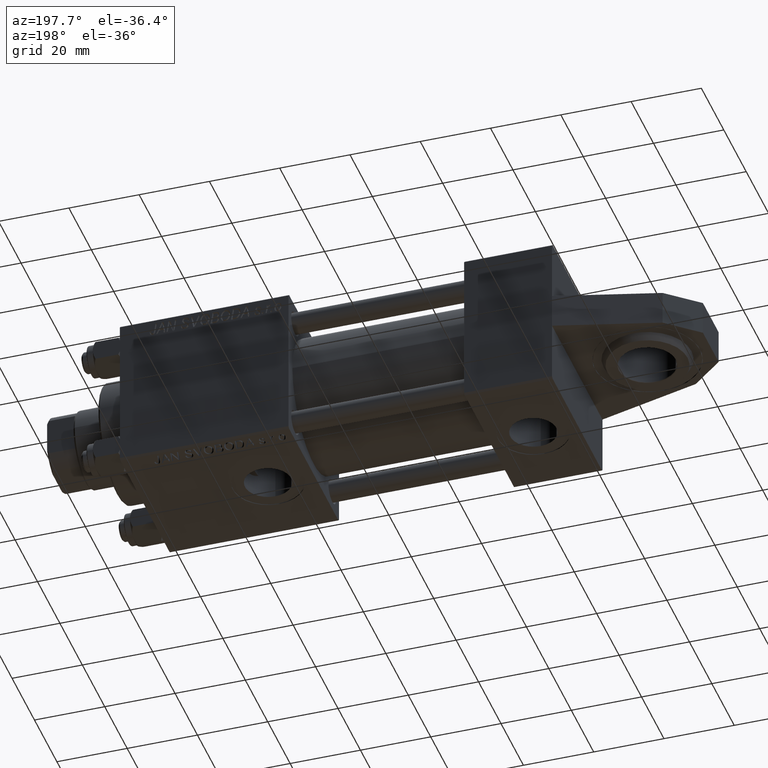
[diagram: clean part render]
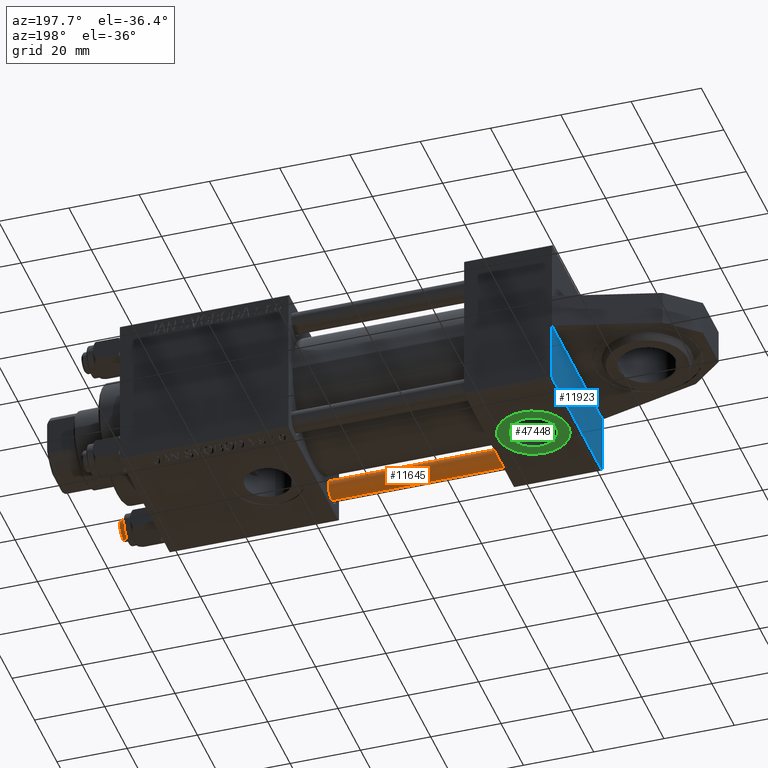
[diagram: same view with three faces highlighted in distinct colors, each labeled with its STEP entity id]
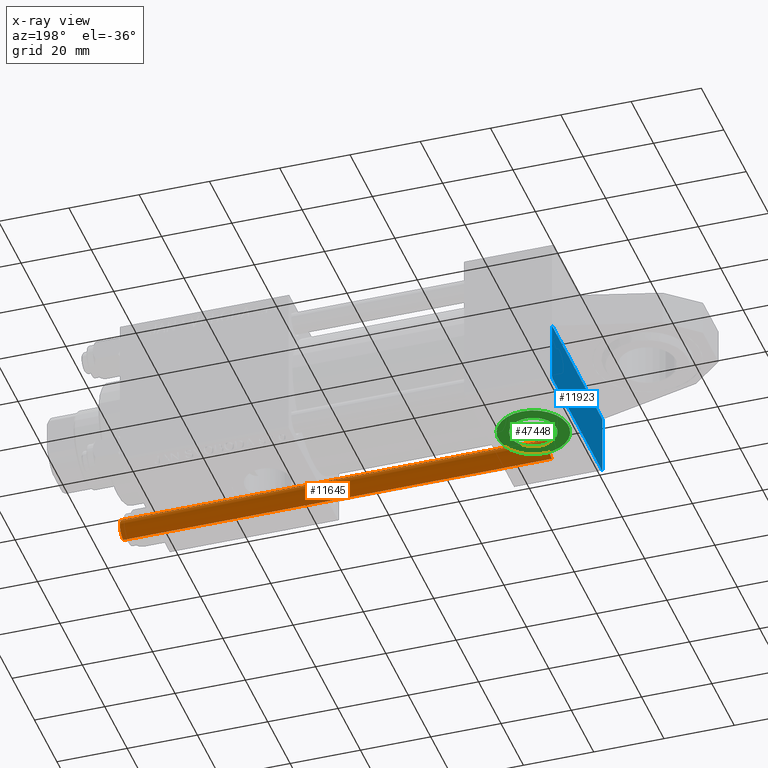
[diagram: x-ray of the same camera — body ghosted, the three highlighted faces saturated]
A machine part, auxiliary view with three faces highlighted in distinct colors.
The next image is the same camera in x-ray (body ghosted, the three faces saturated) — at least one of them is partly hidden behind the body in this view.
Their STEP definitions:

[orange] entity #11645 — the highlighted cylindrical surface (edge-blend (fillet) strip) has radius 3 mm, axis along (1, -0, -0).
#954 = VERTEX_POINT ( 'NONE', #23438 ) ;
#1868 = LINE ( 'NONE', #14257, #3824 ) ;
#3824 = VECTOR ( 'NONE', #21914, 1000.000000000000000 ) ;
#5956 = VECTOR ( 'NONE', #28179, 1000.000000000000000 ) ;
#7031 = DIRECTION ( 'NONE',  ( -1.000000000000000000, 0.000000000000000000, 0.000000000000000000 ) ) ;
#9036 = CIRCLE ( 'NONE', #38550, 3.000000000000000444 ) ;
#9854 = EDGE_CURVE ( 'NONE', #954, #25436, #28699, .T. ) ;
#10438 = CARTESIAN_POINT ( 'NONE',  ( 3.000000000000000444, 3.673940397442060361E-16, 122.4999999999999858 ) ) ;
#11645 = ADVANCED_FACE ( 'NONE', ( #31809 ), #39482, .T. ) ;
#11865 = DIRECTION ( 'NONE',  ( 1.000000000000000000, 0.000000000000000000, 0.000000000000000000 ) ) ;
#13486 = EDGE_LOOP ( 'NONE', ( #25393, #28109, #27798, #39438 ) ) ;
#14257 = CARTESIAN_POINT ( 'NONE',  ( -3.000000000000000444, 0.000000000000000000, 123.0000000000000000 ) ) ;
#15113 = CARTESIAN_POINT ( 'NONE',  ( 3.000000000000000444, 3.673940397442060361E-16, 0.5000000000000004441 ) ) ;
#15458 = DIRECTION ( 'NONE',  ( -0.000000000000000000, -0.000000000000000000, -1.000000000000000000 ) ) ;
#16147 = AXIS2_PLACEMENT_3D ( 'NONE', #31302, #15458, #7031 ) ;
#16288 = LINE ( 'NONE', #49019, #5956 ) ;
#19782 = DIRECTION ( 'NONE',  ( -0.000000000000000000, -0.000000000000000000, 1.000000000000000000 ) ) ;
#21914 = DIRECTION ( 'NONE',  ( -0.000000000000000000, -0.000000000000000000, -1.000000000000000000 ) ) ;
#23438 = CARTESIAN_POINT ( 'NONE',  ( -3.000000000000000444, 0.000000000000000000, 0.5000000000000004441 ) ) ;
#25393 = ORIENTED_EDGE ( 'NONE', *, *, #50504, .F. ) ;
#25436 = VERTEX_POINT ( 'NONE', #15113 ) ;
#25725 = EDGE_CURVE ( 'NONE', #28766, #954, #1868, .T. ) ;
#27798 = ORIENTED_EDGE ( 'NONE', *, *, #25725, .T. ) ;
#28109 = ORIENTED_EDGE ( 'NONE', *, *, #33644, .T. ) ;
#28179 = DIRECTION ( 'NONE',  ( -0.000000000000000000, -0.000000000000000000, -1.000000000000000000 ) ) ;
#28699 = CIRCLE ( 'NONE', #48932, 3.000000000000000444 ) ;
#28766 = VERTEX_POINT ( 'NONE', #38856 ) ;
#31302 = CARTESIAN_POINT ( 'NONE',  ( 0.000000000000000000, 0.000000000000000000, 123.0000000000000000 ) ) ;
#31809 = FACE_OUTER_BOUND ( 'NONE', #13486, .T. ) ;
#33644 = EDGE_CURVE ( 'NONE', #40151, #28766, #9036, .T. ) ;
#34941 = DIRECTION ( 'NONE',  ( 1.000000000000000000, 0.000000000000000000, 0.000000000000000000 ) ) ;
#38550 = AXIS2_PLACEMENT_3D ( 'NONE', #49992, #50253, #34941 ) ;
#38856 = CARTESIAN_POINT ( 'NONE',  ( -3.000000000000000444, 0.000000000000000000, 122.4999999999999858 ) ) ;
#39438 = ORIENTED_EDGE ( 'NONE', *, *, #9854, .T. ) ;
#39482 = CYLINDRICAL_SURFACE ( 'NONE', #16147, 3.000000000000000444 ) ;
#40151 = VERTEX_POINT ( 'NONE', #10438 ) ;
#48807 = CARTESIAN_POINT ( 'NONE',  ( 0.000000000000000000, 0.000000000000000000, 0.5000000000000004441 ) ) ;
#48932 = AXIS2_PLACEMENT_3D ( 'NONE', #48807, #19782, #11865 ) ;
#49019 = CARTESIAN_POINT ( 'NONE',  ( 3.000000000000000444, 3.673940397442060361E-16, 123.0000000000000000 ) ) ;
#49992 = CARTESIAN_POINT ( 'NONE',  ( 0.000000000000000000, 0.000000000000000000, 122.4999999999999858 ) ) ;
#50253 = DIRECTION ( 'NONE',  ( 0.000000000000000000, 0.000000000000000000, -1.000000000000000000 ) ) ;
#50504 = EDGE_CURVE ( 'NONE', #40151, #25436, #16288, .T. ) ;

[blue] entity #11923 — the highlighted planar face has unit normal (-1, 0, 0).
#1372 = LINE ( 'NONE', #37786, #39705 ) ;
#6036 = EDGE_CURVE ( 'NONE', #46469, #26892, #27100, .T. ) ;
#6413 = DIRECTION ( 'NONE',  ( -0.000000000000000000, 0.7071067811865525687, 0.7071067811865425767 ) ) ;
#9304 = EDGE_CURVE ( 'NONE', #46469, #51518, #9324, .T. ) ;
#9324 = LINE ( 'NONE', #25420, #41356 ) ;
#10239 = CARTESIAN_POINT ( 'NONE',  ( 0.000000000000000000, -4.999999999999993783, -22.50000000000000355 ) ) ;
#10322 = VERTEX_POINT ( 'NONE', #46873 ) ;
#10627 = VERTEX_POINT ( 'NONE', #14856 ) ;
#10846 = VECTOR ( 'NONE', #29563, 1000.000000000000000 ) ;
#11923 = ADVANCED_FACE ( 'NONE', ( #51831 ), #19351, .T. ) ;
#13203 = LINE ( 'NONE', #41190, #10846 ) ;
#13252 = DIRECTION ( 'NONE',  ( 0.000000000000000000, -1.000000000000000000, -2.312964634635742957E-16 ) ) ;
#14856 = CARTESIAN_POINT ( 'NONE',  ( 0.000000000000000000, -5.000000000000000000, 22.50000000000000000 ) ) ;
#15651 = DIRECTION ( 'NONE',  ( -0.000000000000000000, 0.000000000000000000, 1.000000000000000000 ) ) ;
#19351 = PLANE ( 'NONE',  #30461 ) ;
#21867 = EDGE_CURVE ( 'NONE', #10627, #43025, #51740, .T. ) ;
#23304 = CARTESIAN_POINT ( 'NONE',  ( 0.000000000000000000, 0.000000000000000000, 0.000000000000000000 ) ) ;
#23382 = CARTESIAN_POINT ( 'NONE',  ( 0.000000000000000000, -22.50000000000000000, 22.50000000000000000 ) ) ;
#25420 = CARTESIAN_POINT ( 'NONE',  ( -0.000000000000000000, -22.24999999999984013, 22.25000000000015277 ) ) ;
#26892 = VERTEX_POINT ( 'NONE', #52200 ) ;
#27100 = LINE ( 'NONE', #23382, #35327 ) ;
#27963 = DIRECTION ( 'NONE',  ( 0.000000000000000000, 0.000000000000000000, -1.000000000000000000 ) ) ;
#28044 = EDGE_LOOP ( 'NONE', ( #44816, #45447, #34720, #28870, #43843, #31548 ) ) ;
#28870 = ORIENTED_EDGE ( 'NONE', *, *, #37056, .T. ) ;
#29563 = DIRECTION ( 'NONE',  ( 0.000000000000000000, -1.000000000000000000, -7.709882115452476934E-17 ) ) ;
#29745 = LINE ( 'NONE', #40851, #48754 ) ;
#30461 = AXIS2_PLACEMENT_3D ( 'NONE', #23304, #38910, #15651 ) ;
#31548 = ORIENTED_EDGE ( 'NONE', *, *, #9304, .T. ) ;
#31826 = DIRECTION ( 'NONE',  ( 0.000000000000000000, 0.000000000000000000, -1.000000000000000000 ) ) ;
#34720 = ORIENTED_EDGE ( 'NONE', *, *, #46937, .T. ) ;
#35327 = VECTOR ( 'NONE', #31826, 1000.000000000000000 ) ;
#35843 = CARTESIAN_POINT ( 'NONE',  ( 0.000000000000000000, -21.99999999999997868, 22.50000000000000000 ) ) ;
#37056 = EDGE_CURVE ( 'NONE', #10322, #26892, #29745, .T. ) ;
#37786 = CARTESIAN_POINT ( 'NONE',  ( 0.000000000000000000, 22.50000000000000000, -22.49999999999999645 ) ) ;
#38910 = DIRECTION ( 'NONE',  ( -1.000000000000000000, 0.000000000000000000, -0.000000000000000000 ) ) ;
#39705 = VECTOR ( 'NONE', #13252, 1000.000000000000000 ) ;
#40851 = CARTESIAN_POINT ( 'NONE',  ( 0.000000000000000000, -22.25000000000014566, -22.24999999999984013 ) ) ;
#41190 = CARTESIAN_POINT ( 'NONE',  ( 0.000000000000000000, 22.50000000000000000, 22.50000000000000355 ) ) ;
#41356 = VECTOR ( 'NONE', #6413, 999.9999999999998863 ) ;
#41799 = EDGE_CURVE ( 'NONE', #10627, #51518, #13203, .T. ) ;
#43025 = VERTEX_POINT ( 'NONE', #10239 ) ;
#43843 = ORIENTED_EDGE ( 'NONE', *, *, #6036, .F. ) ;
#44816 = ORIENTED_EDGE ( 'NONE', *, *, #41799, .F. ) ;
#45447 = ORIENTED_EDGE ( 'NONE', *, *, #21867, .T. ) ;
#45571 = DIRECTION ( 'NONE',  ( 0.000000000000000000, -0.7071067811865426878, 0.7071067811865524577 ) ) ;
#46469 = VERTEX_POINT ( 'NONE', #52017 ) ;
#46873 = CARTESIAN_POINT ( 'NONE',  ( 0.000000000000000000, -21.99999999999997158, -22.50000000000000711 ) ) ;
#46937 = EDGE_CURVE ( 'NONE', #43025, #10322, #1372, .T. ) ;
#48022 = CARTESIAN_POINT ( 'NONE',  ( 0.000000000000000000, -5.000000000000000000, 22.50000000000000000 ) ) ;
#48754 = VECTOR ( 'NONE', #45571, 1000.000000000000000 ) ;
#49182 = VECTOR ( 'NONE', #27963, 1000.000000000000000 ) ;
#51518 = VERTEX_POINT ( 'NONE', #35843 ) ;
#51740 = LINE ( 'NONE', #48022, #49182 ) ;
#51831 = FACE_OUTER_BOUND ( 'NONE', #28044, .T. ) ;
#52017 = CARTESIAN_POINT ( 'NONE',  ( 0.000000000000000000, -22.50000000000000000, 22.00000000000000000 ) ) ;
#52200 = CARTESIAN_POINT ( 'NONE',  ( 0.000000000000000000, -22.50000000000000000, -21.99999999999997158 ) ) ;

[green] entity #47448 — the highlighted planar face has unit normal (0, 0, -1).
#2099 = FACE_BOUND ( 'NONE', #50861, .T. ) ;
#2766 = EDGE_CURVE ( 'NONE', #50877, #4091, #45308, .T. ) ;
#4091 = VERTEX_POINT ( 'NONE', #9784 ) ;
#6064 = CARTESIAN_POINT ( 'NONE',  ( 12.50000000000000000, -22.30000000000000071, 1.734723475976807403E-17 ) ) ;
#8315 = CIRCLE ( 'NONE', #12540, 9.999999999999996447 ) ;
#8605 = EDGE_CURVE ( 'NONE', #4091, #50877, #37920, .T. ) ;
#9755 = AXIS2_PLACEMENT_3D ( 'NONE', #36321, #40551, #20482 ) ;
#9784 = CARTESIAN_POINT ( 'NONE',  ( 12.50000000000000000, -22.30000000000000071, -6.579999999999998295 ) ) ;
#11150 = DIRECTION ( 'NONE',  ( 0.000000000000000000, 0.000000000000000000, -1.000000000000000000 ) ) ;
#12540 = AXIS2_PLACEMENT_3D ( 'NONE', #50746, #35410, #51528 ) ;
#12935 = VERTEX_POINT ( 'NONE', #28846 ) ;
#13982 = VERTEX_POINT ( 'NONE', #37764 ) ;
#14271 = ORIENTED_EDGE ( 'NONE', *, *, #30104, .T. ) ;
#14807 = CIRCLE ( 'NONE', #9755, 9.999999999999996447 ) ;
#19391 = AXIS2_PLACEMENT_3D ( 'NONE', #39140, #38606, #11150 ) ;
#20482 = DIRECTION ( 'NONE',  ( 0.000000000000000000, 0.000000000000000000, -1.000000000000000000 ) ) ;
#21294 = ORIENTED_EDGE ( 'NONE', *, *, #41660, .T. ) ;
#22415 = PLANE ( 'NONE',  #46433 ) ;
#22936 = ORIENTED_EDGE ( 'NONE', *, *, #8605, .F. ) ;
#24664 = CARTESIAN_POINT ( 'NONE',  ( 12.50000000000000000, -22.30000000000000071, 6.579999999999998295 ) ) ;
#27638 = DIRECTION ( 'NONE',  ( 0.000000000000000000, -1.000000000000000000, -8.673617379884036705E-17 ) ) ;
#28846 = CARTESIAN_POINT ( 'NONE',  ( 12.50000000000000178, -22.30000000000000071, 9.999999999999996447 ) ) ;
#30104 = EDGE_CURVE ( 'NONE', #13982, #12935, #14807, .T. ) ;
#30592 = EDGE_LOOP ( 'NONE', ( #14271, #21294 ) ) ;
#31859 = AXIS2_PLACEMENT_3D ( 'NONE', #44261, #27638, #36332 ) ;
#34281 = FACE_OUTER_BOUND ( 'NONE', #30592, .T. ) ;
#34823 = DIRECTION ( 'NONE',  ( 0.000000000000000000, 8.673617379884036705E-17, -1.000000000000000000 ) ) ;
#35410 = DIRECTION ( 'NONE',  ( 0.000000000000000000, -1.000000000000000000, -8.673617379884036705E-17 ) ) ;
#36321 = CARTESIAN_POINT ( 'NONE',  ( 12.50000000000000000, -22.30000000000000071, 1.734723475976807403E-17 ) ) ;
#36332 = DIRECTION ( 'NONE',  ( 0.000000000000000000, 0.000000000000000000, -1.000000000000000000 ) ) ;
#37764 = CARTESIAN_POINT ( 'NONE',  ( 12.50000000000000000, -22.30000000000000071, -9.999999999999996447 ) ) ;
#37920 = CIRCLE ( 'NONE', #19391, 6.579999999999998295 ) ;
#38606 = DIRECTION ( 'NONE',  ( 0.000000000000000000, -1.000000000000000000, -8.673617379884036705E-17 ) ) ;
#39140 = CARTESIAN_POINT ( 'NONE',  ( 12.50000000000000000, -22.30000000000000071, 1.734723475976808635E-17 ) ) ;
#40551 = DIRECTION ( 'NONE',  ( 0.000000000000000000, -1.000000000000000000, -8.673617379884036705E-17 ) ) ;
#40652 = ORIENTED_EDGE ( 'NONE', *, *, #2766, .F. ) ;
#41660 = EDGE_CURVE ( 'NONE', #12935, #13982, #8315, .T. ) ;
#44261 = CARTESIAN_POINT ( 'NONE',  ( 12.50000000000000000, -22.30000000000000071, 1.734723475976808635E-17 ) ) ;
#45308 = CIRCLE ( 'NONE', #31859, 6.579999999999998295 ) ;
#46433 = AXIS2_PLACEMENT_3D ( 'NONE', #6064, #50400, #34823 ) ;
#47448 = ADVANCED_FACE ( 'NONE', ( #2099, #34281 ), #22415, .T. ) ;
#50400 = DIRECTION ( 'NONE',  ( 0.000000000000000000, -1.000000000000000000, -8.673617379884036705E-17 ) ) ;
#50746 = CARTESIAN_POINT ( 'NONE',  ( 12.50000000000000000, -22.30000000000000071, 1.734723475976807403E-17 ) ) ;
#50861 = EDGE_LOOP ( 'NONE', ( #22936, #40652 ) ) ;
#50877 = VERTEX_POINT ( 'NONE', #24664 ) ;
#51528 = DIRECTION ( 'NONE',  ( 0.000000000000000000, 0.000000000000000000, -1.000000000000000000 ) ) ;